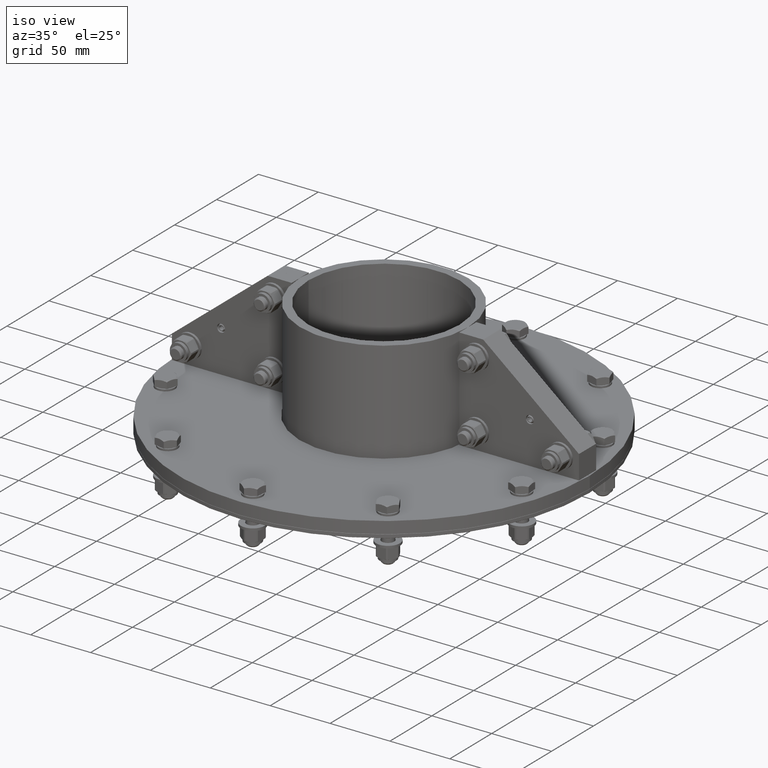
[diagram: clean part render]
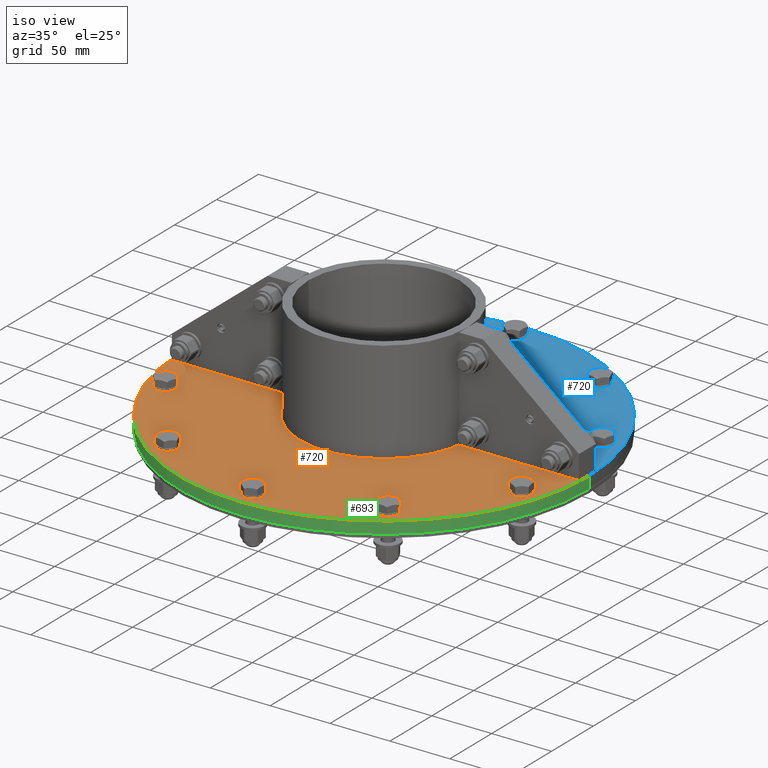
[diagram: same view with three faces highlighted in distinct colors, each labeled with its STEP entity id]
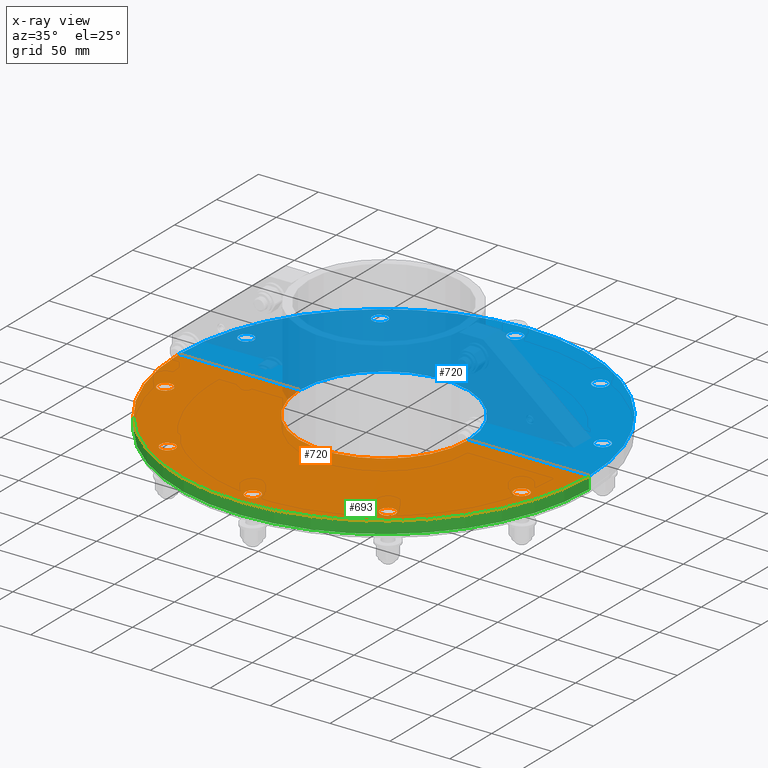
[diagram: x-ray of the same camera — body ghosted, the three highlighted faces saturated]
A machine part, iso view with three faces highlighted in distinct colors.
The next image is the same camera in x-ray (body ghosted, the three faces saturated) — at least one of them is partly hidden behind the body in this view.
Their STEP definitions:

[orange] entity #720 — the highlighted planar face has unit normal (0, -0, -1).
#404=CARTESIAN_POINT('',(171.49988338188456,0.2,10.0));
#405=VERTEX_POINT('',#404);
#414=CARTESIAN_POINT('',(70.499716311485969,0.2,10.0));
#415=VERTEX_POINT('',#414);
#416=CARTESIAN_POINT('',(70.499716311485969,0.2,10.0));
#417=DIRECTION('',(1.0,0.0,0.0));
#418=VECTOR('',#417,101.00016707039859);
#419=LINE('',#416,#418);
#420=EDGE_CURVE('',#415,#405,#419,.T.);
#446=CARTESIAN_POINT('',(-171.49988338188456,0.2,10.0));
#447=VERTEX_POINT('',#446);
#462=CARTESIAN_POINT('',(-70.499716311485969,0.2,10.0));
#463=VERTEX_POINT('',#462);
#470=CARTESIAN_POINT('',(-171.49988338188456,0.2,10.0));
#471=DIRECTION('',(1.0,0.0,0.0));
#472=VECTOR('',#471,101.00016707039859);
#473=LINE('',#470,#472);
#474=EDGE_CURVE('',#447,#463,#473,.T.);
#566=CARTESIAN_POINT('',(0.0,0.0,10.0));
#567=DIRECTION('',(0.0,0.0,-1.0));
#568=DIRECTION('',(-1.0,0.0,0.0));
#569=AXIS2_PLACEMENT_3D('',#566,#567,#568);
#570=CIRCLE('',#569,70.5);
#571=EDGE_CURVE('',#463,#415,#570,.T.);
#584=CARTESIAN_POINT('',(5.056356214843429,152.82634217317207,10.0));
#585=VERTEX_POINT('',#584);
#586=CARTESIAN_POINT('',(1.776357E-014,156.50000000000003,10.0));
#587=DIRECTION('',(0.0,0.0,-1.0));
#588=DIRECTION('',(0.809016994374947,-0.587785252292473,0.0));
#589=AXIS2_PLACEMENT_3D('',#586,#587,#588);
#590=CIRCLE('',#589,6.25);
#591=EDGE_CURVE('',#585,#585,#590,.T.);
#604=CARTESIAN_POINT('',(93.919748198615466,120.66705639283457,10.0));
#605=VERTEX_POINT('',#604);
#606=CARTESIAN_POINT('',(91.988391983772033,126.61115961967928,10.0));
#607=DIRECTION('',(0.0,0.0,-1.0));
#608=DIRECTION('',(0.309016994374947,-0.951056516295154,0.0));
#609=AXIS2_PLACEMENT_3D('',#606,#607,#608);
#610=CIRCLE('',#609,6.25);
#611=EDGE_CURVE('',#605,#605,#610,.T.);
#624=CARTESIAN_POINT('',(146.90898858534814,42.417056392834596,10.0));
#625=VERTEX_POINT('',#624);
#626=CARTESIAN_POINT('',(148.84034480019156,48.361159619679285,10.0));
#627=DIRECTION('',(0.0,0.0,-1.0));
#628=DIRECTION('',(-0.309016994374948,-0.951056516295154,0.0));
#629=AXIS2_PLACEMENT_3D('',#626,#627,#628);
#630=CIRCLE('',#629,6.250000000000001);
#631=EDGE_CURVE('',#625,#625,#630,.T.);
#644=CARTESIAN_POINT('',(-143.78398858534814,52.034817446507205,10.0));
#645=VERTEX_POINT('',#644);
#646=CARTESIAN_POINT('',(-148.84034480019156,48.361159619679242,10.0));
#647=DIRECTION('',(0.0,0.0,-1.0));
#648=DIRECTION('',(0.809016994374947,0.587785252292473,0.0));
#649=AXIS2_PLACEMENT_3D('',#646,#647,#648);
#650=CIRCLE('',#649,6.25);
#651=EDGE_CURVE('',#645,#645,#650,.T.);
#664=CARTESIAN_POINT('',(-85.738391983772075,126.61115961967926,10.0));
#665=VERTEX_POINT('',#664);
#666=CARTESIAN_POINT('',(-91.988391983772075,126.61115961967926,10.0));
#667=DIRECTION('',(0.0,0.0,-1.0));
#668=DIRECTION('',(1.0,0.0,0.0));
#669=AXIS2_PLACEMENT_3D('',#666,#667,#668);
#670=CIRCLE('',#669,6.25);
#671=EDGE_CURVE('',#665,#665,#670,.T.);
#682=CARTESIAN_POINT('',(0.0,0.0,10.0));
#683=DIRECTION('',(0.0,0.0,-1.0));
#684=DIRECTION('',(-1.0,0.0,0.0));
#685=AXIS2_PLACEMENT_3D('',#682,#683,#684);
#686=CIRCLE('',#685,171.50000000000003);
#687=EDGE_CURVE('',#447,#405,#686,.T.);
#694=CARTESIAN_POINT('',(0.0,0.0,10.0));
#695=DIRECTION('',(0.0,0.0,-1.0));
#696=DIRECTION('',(-1.0,0.0,0.0));
#697=AXIS2_PLACEMENT_3D('',#694,#695,#696);
#698=PLANE('',#697);
#699=ORIENTED_EDGE('',*,*,#474,.T.);
#700=ORIENTED_EDGE('',*,*,#571,.T.);
#701=ORIENTED_EDGE('',*,*,#420,.T.);
#702=ORIENTED_EDGE('',*,*,#687,.F.);
#703=EDGE_LOOP('',(#699,#700,#701,#702));
#704=FACE_OUTER_BOUND('',#703,.T.);
#705=ORIENTED_EDGE('',*,*,#591,.T.);
#706=EDGE_LOOP('',(#705));
#707=FACE_BOUND('',#706,.T.);
#708=ORIENTED_EDGE('',*,*,#611,.T.);
#709=EDGE_LOOP('',(#708));
#710=FACE_BOUND('',#709,.T.);
#711=ORIENTED_EDGE('',*,*,#631,.T.);
#712=EDGE_LOOP('',(#711));
#713=FACE_BOUND('',#712,.T.);
#714=ORIENTED_EDGE('',*,*,#651,.T.);
#715=EDGE_LOOP('',(#714));
#716=FACE_BOUND('',#715,.T.);
#717=ORIENTED_EDGE('',*,*,#671,.T.);
#718=EDGE_LOOP('',(#717));
#719=FACE_BOUND('',#718,.T.);
#720=ADVANCED_FACE('',(#704,#707,#710,#713,#716,#719),#698,.F.);

[blue] entity #720 — the highlighted planar face has unit normal (0, 0, -1).
#404=CARTESIAN_POINT('',(171.49988338188456,0.2,10.0));
#405=VERTEX_POINT('',#404);
#414=CARTESIAN_POINT('',(70.499716311485969,0.2,10.0));
#415=VERTEX_POINT('',#414);
#416=CARTESIAN_POINT('',(70.499716311485969,0.2,10.0));
#417=DIRECTION('',(1.0,0.0,0.0));
#418=VECTOR('',#417,101.00016707039859);
#419=LINE('',#416,#418);
#420=EDGE_CURVE('',#415,#405,#419,.T.);
#446=CARTESIAN_POINT('',(-171.49988338188456,0.2,10.0));
#447=VERTEX_POINT('',#446);
#462=CARTESIAN_POINT('',(-70.499716311485969,0.2,10.0));
#463=VERTEX_POINT('',#462);
#470=CARTESIAN_POINT('',(-171.49988338188456,0.2,10.0));
#471=DIRECTION('',(1.0,0.0,0.0));
#472=VECTOR('',#471,101.00016707039859);
#473=LINE('',#470,#472);
#474=EDGE_CURVE('',#447,#463,#473,.T.);
#566=CARTESIAN_POINT('',(0.0,0.0,10.0));
#567=DIRECTION('',(0.0,0.0,-1.0));
#568=DIRECTION('',(-1.0,0.0,0.0));
#569=AXIS2_PLACEMENT_3D('',#566,#567,#568);
#570=CIRCLE('',#569,70.5);
#571=EDGE_CURVE('',#463,#415,#570,.T.);
#584=CARTESIAN_POINT('',(5.056356214843429,152.82634217317207,10.0));
#585=VERTEX_POINT('',#584);
#586=CARTESIAN_POINT('',(1.776357E-014,156.50000000000003,10.0));
#587=DIRECTION('',(0.0,0.0,-1.0));
#588=DIRECTION('',(0.809016994374947,-0.587785252292473,0.0));
#589=AXIS2_PLACEMENT_3D('',#586,#587,#588);
#590=CIRCLE('',#589,6.25);
#591=EDGE_CURVE('',#585,#585,#590,.T.);
#604=CARTESIAN_POINT('',(93.919748198615466,120.66705639283457,10.0));
#605=VERTEX_POINT('',#604);
#606=CARTESIAN_POINT('',(91.988391983772033,126.61115961967928,10.0));
#607=DIRECTION('',(0.0,0.0,-1.0));
#608=DIRECTION('',(0.309016994374947,-0.951056516295154,0.0));
#609=AXIS2_PLACEMENT_3D('',#606,#607,#608);
#610=CIRCLE('',#609,6.25);
#611=EDGE_CURVE('',#605,#605,#610,.T.);
#624=CARTESIAN_POINT('',(146.90898858534814,42.417056392834596,10.0));
#625=VERTEX_POINT('',#624);
#626=CARTESIAN_POINT('',(148.84034480019156,48.361159619679285,10.0));
#627=DIRECTION('',(0.0,0.0,-1.0));
#628=DIRECTION('',(-0.309016994374948,-0.951056516295154,0.0));
#629=AXIS2_PLACEMENT_3D('',#626,#627,#628);
#630=CIRCLE('',#629,6.250000000000001);
#631=EDGE_CURVE('',#625,#625,#630,.T.);
#644=CARTESIAN_POINT('',(-143.78398858534814,52.034817446507205,10.0));
#645=VERTEX_POINT('',#644);
#646=CARTESIAN_POINT('',(-148.84034480019156,48.361159619679242,10.0));
#647=DIRECTION('',(0.0,0.0,-1.0));
#648=DIRECTION('',(0.809016994374947,0.587785252292473,0.0));
#649=AXIS2_PLACEMENT_3D('',#646,#647,#648);
#650=CIRCLE('',#649,6.25);
#651=EDGE_CURVE('',#645,#645,#650,.T.);
#664=CARTESIAN_POINT('',(-85.738391983772075,126.61115961967926,10.0));
#665=VERTEX_POINT('',#664);
#666=CARTESIAN_POINT('',(-91.988391983772075,126.61115961967926,10.0));
#667=DIRECTION('',(0.0,0.0,-1.0));
#668=DIRECTION('',(1.0,0.0,0.0));
#669=AXIS2_PLACEMENT_3D('',#666,#667,#668);
#670=CIRCLE('',#669,6.25);
#671=EDGE_CURVE('',#665,#665,#670,.T.);
#682=CARTESIAN_POINT('',(0.0,0.0,10.0));
#683=DIRECTION('',(0.0,0.0,-1.0));
#684=DIRECTION('',(-1.0,0.0,0.0));
#685=AXIS2_PLACEMENT_3D('',#682,#683,#684);
#686=CIRCLE('',#685,171.50000000000003);
#687=EDGE_CURVE('',#447,#405,#686,.T.);
#694=CARTESIAN_POINT('',(0.0,0.0,10.0));
#695=DIRECTION('',(0.0,0.0,-1.0));
#696=DIRECTION('',(-1.0,0.0,0.0));
#697=AXIS2_PLACEMENT_3D('',#694,#695,#696);
#698=PLANE('',#697);
#699=ORIENTED_EDGE('',*,*,#474,.T.);
#700=ORIENTED_EDGE('',*,*,#571,.T.);
#701=ORIENTED_EDGE('',*,*,#420,.T.);
#702=ORIENTED_EDGE('',*,*,#687,.F.);
#703=EDGE_LOOP('',(#699,#700,#701,#702));
#704=FACE_OUTER_BOUND('',#703,.T.);
#705=ORIENTED_EDGE('',*,*,#591,.T.);
#706=EDGE_LOOP('',(#705));
#707=FACE_BOUND('',#706,.T.);
#708=ORIENTED_EDGE('',*,*,#611,.T.);
#709=EDGE_LOOP('',(#708));
#710=FACE_BOUND('',#709,.T.);
#711=ORIENTED_EDGE('',*,*,#631,.T.);
#712=EDGE_LOOP('',(#711));
#713=FACE_BOUND('',#712,.T.);
#714=ORIENTED_EDGE('',*,*,#651,.T.);
#715=EDGE_LOOP('',(#714));
#716=FACE_BOUND('',#715,.T.);
#717=ORIENTED_EDGE('',*,*,#671,.T.);
#718=EDGE_LOOP('',(#717));
#719=FACE_BOUND('',#718,.T.);
#720=ADVANCED_FACE('',(#704,#707,#710,#713,#716,#719),#698,.F.);

[green] entity #693 — the highlighted cylindrical surface (partial cylindrical patch) has radius 171.5 mm, axis along (-0, 0, 1).
#404=CARTESIAN_POINT('',(171.49988338188456,0.2,10.0));
#405=VERTEX_POINT('',#404);
#406=CARTESIAN_POINT('',(171.49988338188456,0.2,0.0));
#407=VERTEX_POINT('',#406);
#408=CARTESIAN_POINT('',(171.49988338188456,0.2,10.0));
#409=DIRECTION('',(0.0,0.0,-1.0));
#410=VECTOR('',#409,10.0);
#411=LINE('',#408,#410);
#412=EDGE_CURVE('',#405,#407,#411,.T.);
#444=CARTESIAN_POINT('',(-171.49988338188456,0.2,0.0));
#445=VERTEX_POINT('',#444);
#446=CARTESIAN_POINT('',(-171.49988338188456,0.2,10.0));
#447=VERTEX_POINT('',#446);
#448=CARTESIAN_POINT('',(-171.49988338188456,0.2,0.0));
#449=DIRECTION('',(0.0,0.0,1.0));
#450=VECTOR('',#449,10.0);
#451=LINE('',#448,#450);
#452=EDGE_CURVE('',#445,#447,#451,.T.);
#485=CARTESIAN_POINT('',(0.0,0.0,0.0));
#486=DIRECTION('',(0.0,0.0,-1.0));
#487=DIRECTION('',(-1.0,0.0,0.0));
#488=AXIS2_PLACEMENT_3D('',#485,#486,#487);
#489=CIRCLE('',#488,171.50000000000003);
#490=EDGE_CURVE('',#445,#407,#489,.T.);
#676=CARTESIAN_POINT('',(0.0,0.0,0.0));
#677=DIRECTION('',(0.0,0.0,1.0));
#678=DIRECTION('',(-1.0,0.0,0.0));
#679=AXIS2_PLACEMENT_3D('',#676,#677,#678);
#680=CYLINDRICAL_SURFACE('',#679,171.50000000000003);
#681=ORIENTED_EDGE('',*,*,#452,.T.);
#682=CARTESIAN_POINT('',(0.0,0.0,10.0));
#683=DIRECTION('',(0.0,0.0,-1.0));
#684=DIRECTION('',(-1.0,0.0,0.0));
#685=AXIS2_PLACEMENT_3D('',#682,#683,#684);
#686=CIRCLE('',#685,171.50000000000003);
#687=EDGE_CURVE('',#447,#405,#686,.T.);
#688=ORIENTED_EDGE('',*,*,#687,.T.);
#689=ORIENTED_EDGE('',*,*,#412,.T.);
#690=ORIENTED_EDGE('',*,*,#490,.F.);
#691=EDGE_LOOP('',(#681,#688,#689,#690));
#692=FACE_OUTER_BOUND('',#691,.T.);
#693=ADVANCED_FACE('',(#692),#680,.T.);